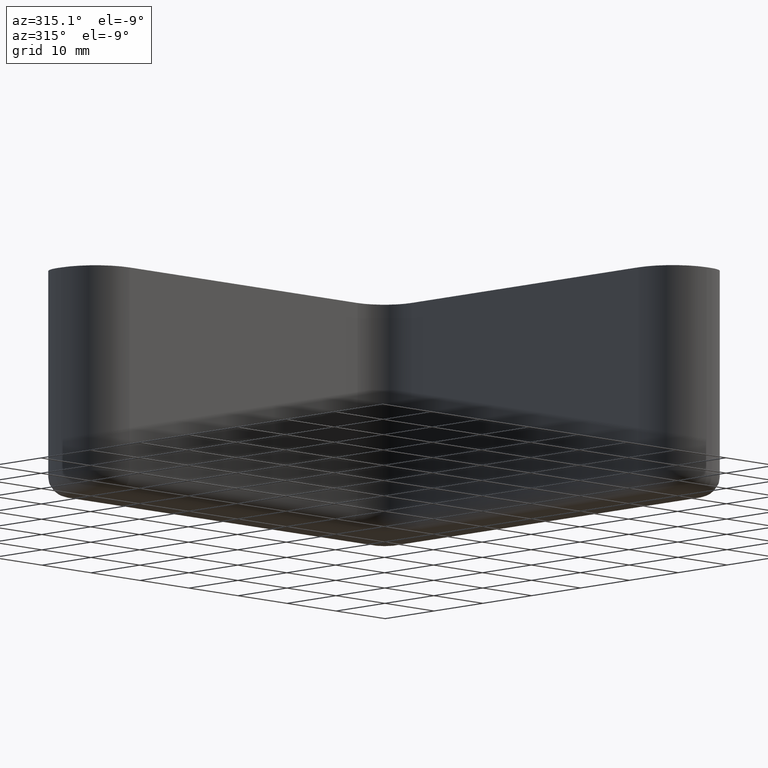
[diagram: clean part render]
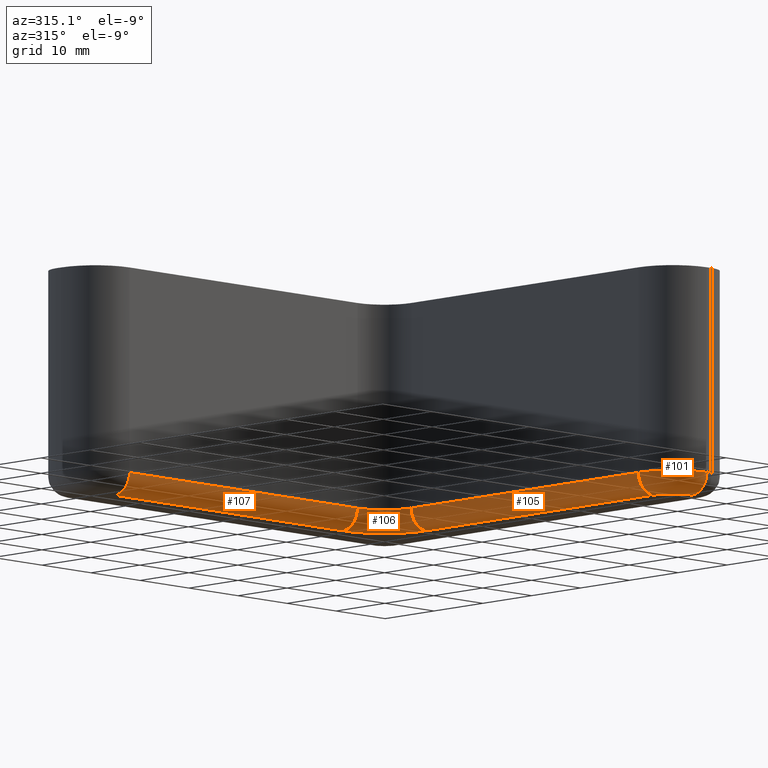
[diagram: same view with one multi-face feature highlighted, each face labeled with its STEP entity id]
A machine part, auxiliary view. The highlighted faces form ONE feature: a constant-radius fillet chain: 4 tangent blend faces with common blend radius 3 mm. The faces share edges in the B-rep.
Their STEP definitions:
[1] entity #106 (Torus):
#106 = ADVANCED_FACE( '', ( #178 ), #179, .T. );
#178 = FACE_OUTER_BOUND( '', #302, .T. );
#179 = TOROIDAL_SURFACE( '', #303, 8.50000000000000, 3.00000000000000 );
#302 = EDGE_LOOP( '', ( #562, #563, #564, #565 ) );
#303 = AXIS2_PLACEMENT_3D( '', #566, #567, #568 );
#562 = ORIENTED_EDGE( '', *, *, #708, .T. );
#563 = ORIENTED_EDGE( '', *, *, #629, .T. );
#564 = ORIENTED_EDGE( '', *, *, #709, .F. );
#565 = ORIENTED_EDGE( '', *, *, #688, .T. );
#566 = CARTESIAN_POINT( '', ( -14.5000000000000, -14.5000000000000, -30.0000000000000 ) );
#567 = DIRECTION( '', ( -3.58678896750442E-017, 8.65927457071936E-017, -1.00000000000000 ) );
#568 = DIRECTION( '', ( 1.00000000000000, -1.06733799631484E-048, -3.58678896750442E-017 ) );
#629 = EDGE_CURVE( '', #734, #729, #735, .T. );
#688 = EDGE_CURVE( '', #838, #836, #839, .T. );
#708 = EDGE_CURVE( '', #836, #734, #864, .T. );
#709 = EDGE_CURVE( '', #838, #729, #865, .T. );
#729 = VERTEX_POINT( '', #889 );
#734 = VERTEX_POINT( '', #897 );
#735 = CIRCLE( '', #898, 5.50000000000000 );
#836 = VERTEX_POINT( '', #1031 );
#838 = VERTEX_POINT( '', #1034 );
#839 = CIRCLE( '', #1035, 8.50000000000000 );
#864 = CIRCLE( '', #1071, 3.00000000000000 );
#865 = CIRCLE( '', #1072, 3.00000000000000 );
#889 = CARTESIAN_POINT( '', ( -14.5000000000000, -9.00000000000000, -30.0000000000000 ) );
#897 = CARTESIAN_POINT( '', ( -9.00000000000000, -14.5000000000000, -30.0000000000000 ) );
#898 = AXIS2_PLACEMENT_3D( '', #1099, #1100, #1101 );
#1031 = CARTESIAN_POINT( '', ( -5.99999999999999, -14.5000000000000, -33.0000000000000 ) );
#1034 = CARTESIAN_POINT( '', ( -14.5000000000000, -6.00000000000000, -33.0000000000000 ) );
#1035 = AXIS2_PLACEMENT_3D( '', #1210, #1211, #1212 );
#1071 = AXIS2_PLACEMENT_3D( '', #1248, #1249, #1250 );
#1072 = AXIS2_PLACEMENT_3D( '', #1251, #1252, #1253 );
#1099 = CARTESIAN_POINT( '', ( -14.5000000000000, -14.5000000000000, -30.0000000000000 ) );
#1100 = DIRECTION( '', ( 3.58678896750442E-017, -8.65927457071936E-017, 1.00000000000000 ) );
#1101 = DIRECTION( '', ( 0.707106781186548, 0.707106781186548, 3.58678896750442E-017 ) );
#1210 = CARTESIAN_POINT( '', ( -14.5000000000000, -14.5000000000000, -33.0000000000000 ) );
#1211 = DIRECTION( '', ( -3.58678896750442E-017, 8.65927457071936E-017, -1.00000000000000 ) );
#1212 = DIRECTION( '', ( 0.707106781186547, 0.707106781186548, 3.58678896750442E-017 ) );
#1248 = CARTESIAN_POINT( '', ( -5.99999999999999, -14.5000000000000, -30.0000000000000 ) );
#1249 = DIRECTION( '', ( 0.000000000000000, 1.00000000000000, 8.65927457071935E-017 ) );
#1250 = DIRECTION( '', ( -3.58678896750442E-017, 8.65927457071935E-017, -1.00000000000000 ) );
#1251 = CARTESIAN_POINT( '', ( -14.5000000000000, -6.00000000000000, -30.0000000000000 ) );
#1252 = DIRECTION( '', ( -1.00000000000000, 0.000000000000000, 3.58678896750442E-017 ) );
#1253 = DIRECTION( '', ( -3.58678896750442E-017, 8.65927457071935E-017, -1.00000000000000 ) );
[2] entity #105 (Cylinder):
#105 = ADVANCED_FACE( '', ( #176 ), #177, .T. );
#176 = FACE_OUTER_BOUND( '', #300, .T. );
#177 = CYLINDRICAL_SURFACE( '', #301, 3.00000000000000 );
#300 = EDGE_LOOP( '', ( #555, #556, #557, #558 ) );
#301 = AXIS2_PLACEMENT_3D( '', #559, #560, #561 );
#555 = ORIENTED_EDGE( '', *, *, #704, .T. );
#556 = ORIENTED_EDGE( '', *, *, #707, .T. );
#557 = ORIENTED_EDGE( '', *, *, #708, .F. );
#558 = ORIENTED_EDGE( '', *, *, #687, .T. );
#559 = CARTESIAN_POINT( '', ( -6.00000000000000, -19.2500000000000, -30.0000000000000 ) );
#560 = DIRECTION( '', ( 5.47820073070147E-033, -1.00000000000000, -4.89580669063408E-017 ) );
#561 = DIRECTION( '', ( -0.707106781186548, 3.46185811032582E-017, -0.707106781186547 ) );
#687 = EDGE_CURVE( '', #836, #834, #837, .T. );
#704 = EDGE_CURVE( '', #834, #858, #860, .T. );
#707 = EDGE_CURVE( '', #858, #734, #863, .T. );
#708 = EDGE_CURVE( '', #836, #734, #864, .T. );
#734 = VERTEX_POINT( '', #897 );
#834 = VERTEX_POINT( '', #1029 );
#836 = VERTEX_POINT( '', #1031 );
#837 = LINE( '', #1032, #1033 );
#858 = VERTEX_POINT( '', #1062 );
#860 = CIRCLE( '', #1064, 3.00000000000000 );
#863 = LINE( '', #1069, #1070 );
#864 = CIRCLE( '', #1071, 3.00000000000000 );
#897 = CARTESIAN_POINT( '', ( -9.00000000000000, -14.5000000000000, -30.0000000000000 ) );
#1029 = CARTESIAN_POINT( '', ( -6.00000000000000, -61.0000000000000, -33.0000000000000 ) );
#1031 = CARTESIAN_POINT( '', ( -5.99999999999999, -14.5000000000000, -33.0000000000000 ) );
#1032 = CARTESIAN_POINT( '', ( -6.00000000000000, -19.2500000000000, -33.0000000000000 ) );
#1033 = VECTOR( '', #1209, 1000.00000000000 );
#1062 = CARTESIAN_POINT( '', ( -9.00000000000000, -61.0000000000000, -30.0000000000000 ) );
#1064 = AXIS2_PLACEMENT_3D( '', #1242, #1243, #1244 );
#1069 = CARTESIAN_POINT( '', ( -9.00000000000000, -19.2500000000000, -30.0000000000000 ) );
#1070 = VECTOR( '', #1247, 1000.00000000000 );
#1071 = AXIS2_PLACEMENT_3D( '', #1248, #1249, #1250 );
#1209 = DIRECTION( '', ( 0.000000000000000, -1.00000000000000, -8.65927457071935E-017 ) );
#1242 = CARTESIAN_POINT( '', ( -6.00000000000000, -61.0000000000000, -30.0000000000000 ) );
#1243 = DIRECTION( '', ( 0.000000000000000, 1.00000000000000, 8.65927457071935E-017 ) );
#1244 = DIRECTION( '', ( -3.58678896750442E-017, 8.65927457071935E-017, -1.00000000000000 ) );
#1247 = DIRECTION( '', ( 0.000000000000000, 1.00000000000000, 8.65927457071935E-017 ) );
#1248 = CARTESIAN_POINT( '', ( -5.99999999999999, -14.5000000000000, -30.0000000000000 ) );
#1249 = DIRECTION( '', ( 0.000000000000000, 1.00000000000000, 8.65927457071935E-017 ) );
#1250 = DIRECTION( '', ( -3.58678896750442E-017, 8.65927457071935E-017, -1.00000000000000 ) );
[3] entity #101 (Torus):
#101 = ADVANCED_FACE( '', ( #168 ), #169, .T. );
#168 = FACE_OUTER_BOUND( '', #292, .T. );
#169 = TOROIDAL_SURFACE( '', #293, 4.00000000000000, 3.00000000000000 );
#292 = EDGE_LOOP( '', ( #527, #528, #529, #530 ) );
#293 = AXIS2_PLACEMENT_3D( '', #531, #532, #533 );
#527 = ORIENTED_EDGE( '', *, *, #702, .T. );
#528 = ORIENTED_EDGE( '', *, *, #703, .T. );
#529 = ORIENTED_EDGE( '', *, *, #704, .F. );
#530 = ORIENTED_EDGE( '', *, *, #686, .T. );
#531 = CARTESIAN_POINT( '', ( -1.99999999999999, -61.0000000000000, -30.0000000000000 ) );
#532 = DIRECTION( '', ( 3.58678896750442E-017, -8.65927457071936E-017, 1.00000000000000 ) );
#533 = DIRECTION( '', ( -1.00000000000000, 1.06733799631484E-048, 3.58678896750442E-017 ) );
#686 = EDGE_CURVE( '', #834, #832, #835, .T. );
#702 = EDGE_CURVE( '', #832, #855, #857, .T. );
#703 = EDGE_CURVE( '', #855, #858, #859, .T. );
#704 = EDGE_CURVE( '', #834, #858, #860, .T. );
#832 = VERTEX_POINT( '', #1026 );
#834 = VERTEX_POINT( '', #1029 );
#835 = CIRCLE( '', #1030, 4.00000000000000 );
#855 = VERTEX_POINT( '', #1058 );
#857 = CIRCLE( '', #1061, 3.00000000000000 );
#858 = VERTEX_POINT( '', #1062 );
#859 = CIRCLE( '', #1063, 7.00000000000000 );
#860 = CIRCLE( '', #1064, 3.00000000000000 );
#1026 = CARTESIAN_POINT( '', ( -1.99999999999999, -65.0000000000000, -33.0000000000000 ) );
#1029 = CARTESIAN_POINT( '', ( -6.00000000000000, -61.0000000000000, -33.0000000000000 ) );
#1030 = AXIS2_PLACEMENT_3D( '', #1206, #1207, #1208 );
#1058 = CARTESIAN_POINT( '', ( -1.99999999999999, -68.0000000000000, -30.0000000000000 ) );
#1061 = AXIS2_PLACEMENT_3D( '', #1236, #1237, #1238 );
#1062 = CARTESIAN_POINT( '', ( -9.00000000000000, -61.0000000000000, -30.0000000000000 ) );
#1063 = AXIS2_PLACEMENT_3D( '', #1239, #1240, #1241 );
#1064 = AXIS2_PLACEMENT_3D( '', #1242, #1243, #1244 );
#1206 = CARTESIAN_POINT( '', ( -1.99999999999999, -61.0000000000000, -33.0000000000000 ) );
#1207 = DIRECTION( '', ( 3.58678896750442E-017, -8.65927457071936E-017, 1.00000000000000 ) );
#1208 = DIRECTION( '', ( -0.707106781186548, -0.707106781186547, -3.58678896750441E-017 ) );
#1236 = CARTESIAN_POINT( '', ( -1.99999999999999, -65.0000000000000, -30.0000000000000 ) );
#1237 = DIRECTION( '', ( -1.00000000000000, 0.000000000000000, 3.58678896750442E-017 ) );
#1238 = DIRECTION( '', ( -3.58678896750442E-017, 8.65927457071935E-017, -1.00000000000000 ) );
#1239 = CARTESIAN_POINT( '', ( -1.99999999999999, -61.0000000000000, -30.0000000000000 ) );
#1240 = DIRECTION( '', ( -3.58678896750442E-017, 8.65927457071936E-017, -1.00000000000000 ) );
#1241 = DIRECTION( '', ( -0.707106781186548, -0.707106781186547, -3.58678896750441E-017 ) );
#1242 = CARTESIAN_POINT( '', ( -6.00000000000000, -61.0000000000000, -30.0000000000000 ) );
#1243 = DIRECTION( '', ( 0.000000000000000, 1.00000000000000, 8.65927457071935E-017 ) );
#1244 = DIRECTION( '', ( -3.58678896750442E-017, 8.65927457071935E-017, -1.00000000000000 ) );
[4] entity #107 (Cylinder):
#107 = ADVANCED_FACE( '', ( #180 ), #181, .T. );
#180 = FACE_OUTER_BOUND( '', #304, .T. );
#181 = CYLINDRICAL_SURFACE( '', #305, 3.00000000000000 );
#304 = EDGE_LOOP( '', ( #569, #570, #571, #572 ) );
#305 = AXIS2_PLACEMENT_3D( '', #573, #574, #575 );
#569 = ORIENTED_EDGE( '', *, *, #709, .T. );
#570 = ORIENTED_EDGE( '', *, *, #626, .T. );
#571 = ORIENTED_EDGE( '', *, *, #710, .F. );
#572 = ORIENTED_EDGE( '', *, *, #689, .T. );
#573 = CARTESIAN_POINT( '', ( -48.7500000000000, -6.00000000000000, -30.0000000000000 ) );
#574 = DIRECTION( '', ( -1.00000000000000, 0.000000000000000, 3.58678896750442E-017 ) );
#575 = DIRECTION( '', ( -2.53624280160747E-017, -0.707106781186547, -0.707106781186548 ) );
#626 = EDGE_CURVE( '', #729, #722, #730, .T. );
#689 = EDGE_CURVE( '', #840, #838, #841, .T. );
#709 = EDGE_CURVE( '', #838, #729, #865, .T. );
#710 = EDGE_CURVE( '', #840, #722, #866, .T. );
#722 = VERTEX_POINT( '', #880 );
#729 = VERTEX_POINT( '', #889 );
#730 = LINE( '', #890, #891 );
#838 = VERTEX_POINT( '', #1034 );
#840 = VERTEX_POINT( '', #1036 );
#841 = LINE( '', #1037, #1038 );
#865 = CIRCLE( '', #1072, 3.00000000000000 );
#866 = CIRCLE( '', #1073, 3.00000000000000 );
#880 = CARTESIAN_POINT( '', ( -61.0000000000000, -9.00000000000000, -30.0000000000000 ) );
#889 = CARTESIAN_POINT( '', ( -14.5000000000000, -9.00000000000000, -30.0000000000000 ) );
#890 = CARTESIAN_POINT( '', ( -48.7500000000000, -9.00000000000001, -30.0000000000000 ) );
#891 = VECTOR( '', #1096, 1000.00000000000 );
#1034 = CARTESIAN_POINT( '', ( -14.5000000000000, -6.00000000000000, -33.0000000000000 ) );
#1036 = CARTESIAN_POINT( '', ( -61.0000000000000, -6.00000000000000, -33.0000000000000 ) );
#1037 = CARTESIAN_POINT( '', ( -48.7500000000000, -6.00000000000000, -33.0000000000000 ) );
#1038 = VECTOR( '', #1213, 1000.00000000000 );
#1072 = AXIS2_PLACEMENT_3D( '', #1251, #1252, #1253 );
#1073 = AXIS2_PLACEMENT_3D( '', #1254, #1255, #1256 );
#1096 = DIRECTION( '', ( -1.00000000000000, 0.000000000000000, 3.58678896750442E-017 ) );
#1213 = DIRECTION( '', ( 1.00000000000000, 0.000000000000000, -3.58678896750442E-017 ) );
#1251 = CARTESIAN_POINT( '', ( -14.5000000000000, -6.00000000000000, -30.0000000000000 ) );
#1252 = DIRECTION( '', ( -1.00000000000000, 0.000000000000000, 3.58678896750442E-017 ) );
#1253 = DIRECTION( '', ( -3.58678896750442E-017, 8.65927457071935E-017, -1.00000000000000 ) );
#1254 = CARTESIAN_POINT( '', ( -61.0000000000000, -6.00000000000000, -30.0000000000000 ) );
#1255 = DIRECTION( '', ( -1.00000000000000, 0.000000000000000, 3.58678896750442E-017 ) );
#1256 = DIRECTION( '', ( -3.58678896750442E-017, 8.65927457071935E-017, -1.00000000000000 ) );